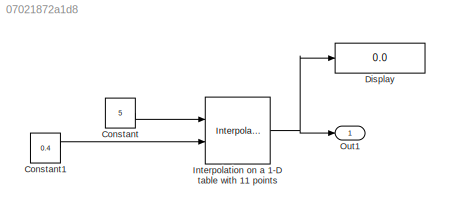
MODEL slx_07021872a1d8
KIND model
CONFIG AbsTol = auto
CONFIG EnableMultiTasking = on
CONFIG FixedStep = 0.1
CONFIG MaxStep = auto
CONFIG MinStep = auto
CONFIG RelTol = 1e-3
CONFIG SampleTimeConstraint = Unconstrained
CONFIG Solver = FixedStepAuto
CONFIG SolverName = FixedStepAuto
CONFIG StartTime = 0.0
CONFIG StopTime = 10.0
BLOCK [Constant] Constant
  OutDataTypeStr = int8
  Value = 5
BLOCK [Constant] Constant1
  Value = 0.4
BLOCK [Display] Display
  Decimation = 1
  Ports = [1]
BLOCK [Interpolation_n-D] Interpolation on a 1-D table with 11 points
  ExtrapMethod = Clip
  InputPortMap = u0,u1
  NumberOfTableDimensions = 1
  Ports = [2, 1]
  Table = [1:11].*[1:11]
BLOCK [Outport] Out1
  IconDisplay = Port number
LINE Constant1:1 -> Interpolation on a 1-D table with 11 points:2
LINE Constant:1 -> Interpolation on a 1-D table with 11 points:1
NET Interpolation on a 1-D table with 11 points:1 -> Display:1, Out1:1
note: NET lines group one-source signal fan-out (src -> all destinations, sorted); 1:1 wires keep LINE
